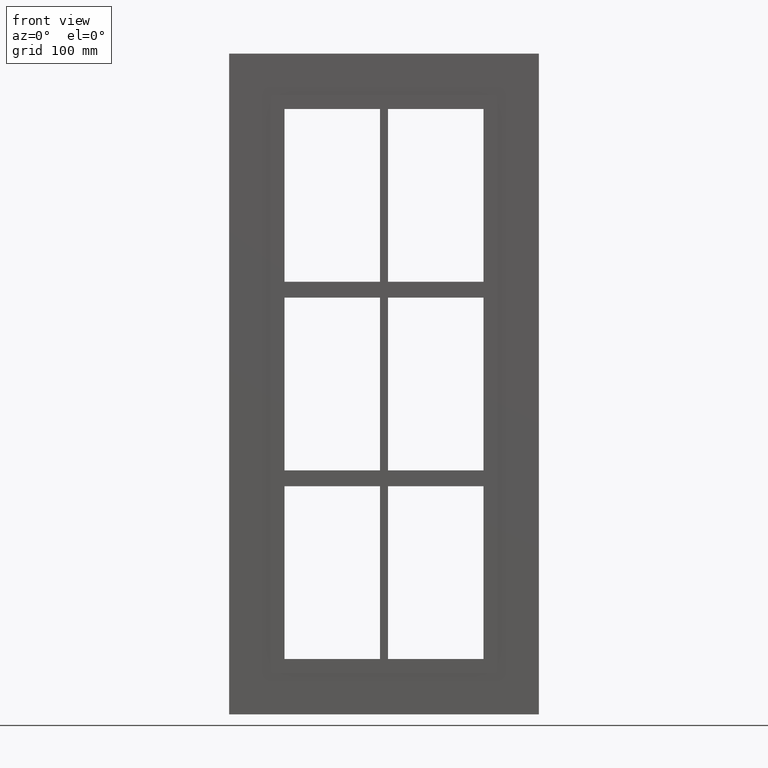
[diagram: clean part render]
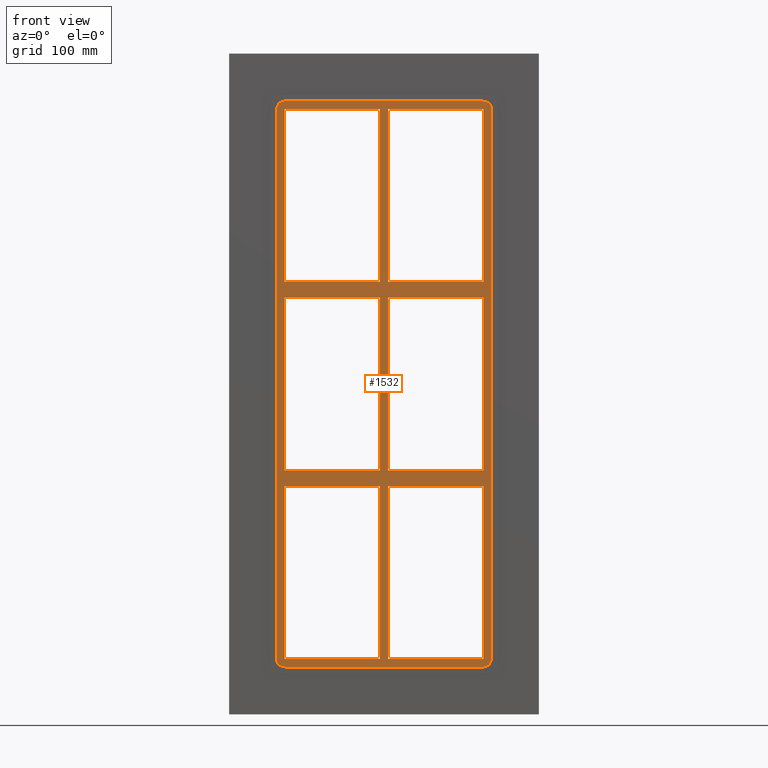
[diagram: same view with one face highlighted and labeled with its STEP entity id]
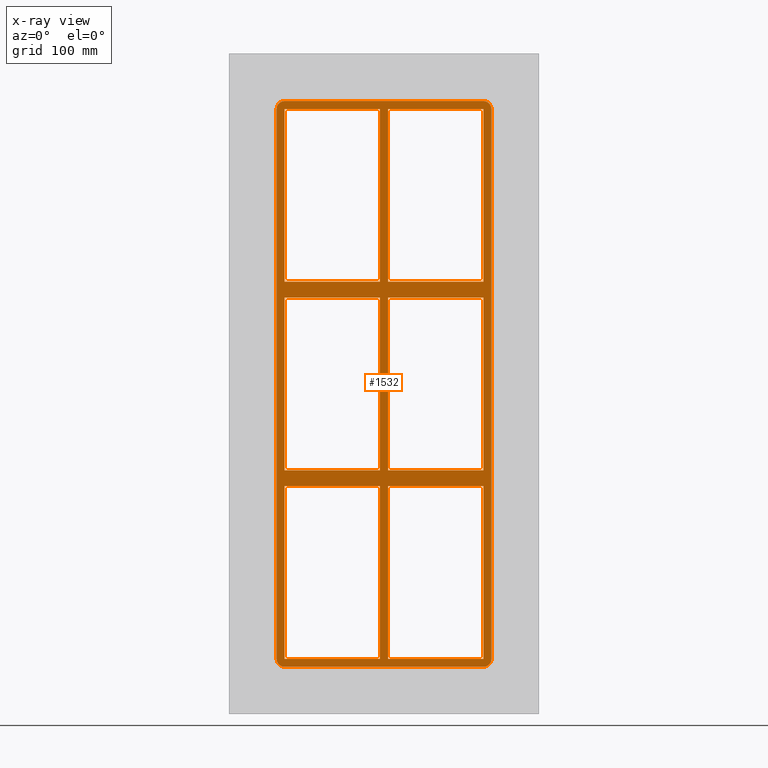
[diagram: x-ray of the same camera — body ghosted, the highlighted face saturated]
A machine part, front view. The second image highlights one B-rep face of the part: STEP entity #1532.
The next image is the same camera in x-ray: the body ghosted, the highlighted face saturated — about 0% of this face is hidden behind the body in this view.
In plain terms, the highlighted planar face has unit normal (0, 1, 0).
Its self-contained STEP definition (entity closure, byte-faithful):
#75=CARTESIAN_POINT('',(5.0,-3.0,108.99999999999062));
#76=VERTEX_POINT('',#75);
#91=CARTESIAN_POINT('',(125.50000000000182,-3.0,108.99999999999068));
#92=VERTEX_POINT('',#91);
#99=CARTESIAN_POINT('',(125.50000000000182,-3.0,108.99999999999068));
#100=DIRECTION('',(-1.0,0.0,0.0));
#101=VECTOR('',#100,120.50000000000182);
#102=LINE('',#99,#101);
#103=EDGE_CURVE('',#92,#76,#102,.T.);
#113=CARTESIAN_POINT('',(5.0,-3.0,128.99999999999994));
#114=VERTEX_POINT('',#113);
#123=CARTESIAN_POINT('',(125.4999999999999,-3.0,128.99999999999994));
#124=VERTEX_POINT('',#123);
#125=CARTESIAN_POINT('',(5.000000000000014,-3.0,128.99999999999994));
#126=DIRECTION('',(1.0,0.0,0.0));
#127=VECTOR('',#126,120.49999999999989);
#128=LINE('',#125,#127);
#129=EDGE_CURVE('',#114,#124,#128,.T.);
#155=CARTESIAN_POINT('',(-5.000000000001368,-3.0,128.99999999999994));
#156=VERTEX_POINT('',#155);
#171=CARTESIAN_POINT('',(-125.4999999999997,-3.0,128.99999999999994));
#172=VERTEX_POINT('',#171);
#179=CARTESIAN_POINT('',(-125.4999999999997,-3.0,128.99999999999994));
#180=DIRECTION('',(1.0,0.0,0.0));
#181=VECTOR('',#180,120.49999999999834);
#182=LINE('',#179,#181);
#183=EDGE_CURVE('',#172,#156,#182,.T.);
#193=CARTESIAN_POINT('',(-5.000000000001368,-3.0,108.99999999999062));
#194=VERTEX_POINT('',#193);
#203=CARTESIAN_POINT('',(-125.4999999999997,-3.0,108.99999999999056));
#204=VERTEX_POINT('',#203);
#205=CARTESIAN_POINT('',(-5.000000000001364,-3.0,108.99999999999062));
#206=DIRECTION('',(-1.0,0.0,0.0));
#207=VECTOR('',#206,120.49999999999832);
#208=LINE('',#205,#207);
#209=EDGE_CURVE('',#194,#204,#208,.T.);
#234=CARTESIAN_POINT('',(-125.4999999999997,-3.0,-109.00000000000006));
#235=VERTEX_POINT('',#234);
#236=CARTESIAN_POINT('',(-125.5,-3.0,-109.00000000000006));
#237=DIRECTION('',(0.0,0.0,1.0));
#238=VECTOR('',#237,217.99999999999065);
#239=LINE('',#236,#238);
#240=EDGE_CURVE('',#235,#204,#239,.T.);
#273=CARTESIAN_POINT('',(125.4999999999999,-3.0,-109.00000000000006));
#274=VERTEX_POINT('',#273);
#281=CARTESIAN_POINT('',(125.49999999999999,-3.0,108.99999999999066));
#282=DIRECTION('',(0.0,0.0,-1.0));
#283=VECTOR('',#282,217.99999999999073);
#284=LINE('',#281,#283);
#285=EDGE_CURVE('',#92,#274,#284,.T.);
#296=CARTESIAN_POINT('',(125.49999999999999,-3.0,347.00000000000011));
#297=VERTEX_POINT('',#296);
#298=CARTESIAN_POINT('',(125.49999999999999,-3.0,347.00000000000011));
#299=DIRECTION('',(0.0,0.0,-1.0));
#300=VECTOR('',#299,218.00000000000017);
#301=LINE('',#298,#300);
#302=EDGE_CURVE('',#297,#124,#301,.T.);
#327=CARTESIAN_POINT('',(-5.000000000001403,-3.0,347.00000000000011));
#328=VERTEX_POINT('',#327);
#329=CARTESIAN_POINT('',(-5.000000000001364,-3.0,129.0));
#330=DIRECTION('',(0.0,0.0,1.0));
#331=VECTOR('',#330,218.00000000000006);
#332=LINE('',#329,#331);
#333=EDGE_CURVE('',#156,#328,#332,.T.);
#366=CARTESIAN_POINT('',(-5.000000000001315,-3.0,-109.00000000000006));
#367=VERTEX_POINT('',#366);
#374=CARTESIAN_POINT('',(-5.000000000001322,-3.0,-109.00000000000006));
#375=DIRECTION('',(0.0,0.0,1.0));
#376=VECTOR('',#375,217.99999999999068);
#377=LINE('',#374,#376);
#378=EDGE_CURVE('',#367,#194,#377,.T.);
#397=CARTESIAN_POINT('',(5.0,-3.0,347.00000000000011));
#398=VERTEX_POINT('',#397);
#405=CARTESIAN_POINT('',(5.0,-3.0,347.00000000000011));
#406=DIRECTION('',(0.0,0.0,-1.0));
#407=VECTOR('',#406,218.00000000000014);
#408=LINE('',#405,#407);
#409=EDGE_CURVE('',#398,#114,#408,.T.);
#421=CARTESIAN_POINT('',(5.0,-3.0,-129.00000000000938));
#422=VERTEX_POINT('',#421);
#437=CARTESIAN_POINT('',(125.50000000000182,-3.0,-129.00000000000932));
#438=VERTEX_POINT('',#437);
#445=CARTESIAN_POINT('',(125.50000000000182,-3.0,-129.00000000000932));
#446=DIRECTION('',(-1.0,0.0,0.0));
#447=VECTOR('',#446,120.50000000000182);
#448=LINE('',#445,#447);
#449=EDGE_CURVE('',#438,#422,#448,.T.);
#459=CARTESIAN_POINT('',(-5.000000000001315,-3.0,-129.00000000000938));
#460=VERTEX_POINT('',#459);
#469=CARTESIAN_POINT('',(-125.4999999999997,-3.0,-129.00000000000944));
#470=VERTEX_POINT('',#469);
#471=CARTESIAN_POINT('',(-5.000000000001307,-3.0,-129.00000000000938));
#472=DIRECTION('',(-1.0,0.0,0.0));
#473=VECTOR('',#472,120.49999999999838);
#474=LINE('',#471,#473);
#475=EDGE_CURVE('',#460,#470,#474,.T.);
#499=CARTESIAN_POINT('',(5.0,-3.0,-109.00000000000006));
#500=VERTEX_POINT('',#499);
#509=CARTESIAN_POINT('',(5.000000000000014,-3.0,-109.00000000000006));
#510=DIRECTION('',(1.0,0.0,0.0));
#511=VECTOR('',#510,120.49999999999989);
#512=LINE('',#509,#511);
#513=EDGE_CURVE('',#500,#274,#512,.T.);
#538=CARTESIAN_POINT('',(-125.4999999999997,-3.0,-109.00000000000006));
#539=DIRECTION('',(1.0,0.0,0.0));
#540=VECTOR('',#539,120.49999999999839);
#541=LINE('',#538,#540);
#542=EDGE_CURVE('',#235,#367,#541,.T.);
#561=CARTESIAN_POINT('',(-125.50000000000003,-3.0,347.00000000000011));
#562=VERTEX_POINT('',#561);
#569=CARTESIAN_POINT('',(-125.5,-3.0,128.99999999999997));
#570=DIRECTION('',(0.0,0.0,1.0));
#571=VECTOR('',#570,218.00000000000014);
#572=LINE('',#569,#571);
#573=EDGE_CURVE('',#172,#562,#572,.T.);
#592=CARTESIAN_POINT('',(125.49999999999999,-3.0,-346.99999999999994));
#593=VERTEX_POINT('',#592);
#600=CARTESIAN_POINT('',(125.49999999999999,-3.0,-129.00000000000932));
#601=DIRECTION('',(0.0,0.0,-1.0));
#602=VECTOR('',#601,217.99999999999068);
#603=LINE('',#600,#602);
#604=EDGE_CURVE('',#438,#593,#603,.T.);
#773=CARTESIAN_POINT('',(5.0,-3.0,108.99999999999062));
#774=DIRECTION('',(0.0,0.0,-1.0));
#775=VECTOR('',#774,217.99999999999068);
#776=LINE('',#773,#775);
#777=EDGE_CURVE('',#76,#500,#776,.T.);
#791=CARTESIAN_POINT('',(-5.000000000001279,-3.0,-346.99999999999994));
#792=VERTEX_POINT('',#791);
#799=CARTESIAN_POINT('',(-5.000000000001279,-3.0,-346.99999999999994));
#800=DIRECTION('',(0.0,0.0,1.0));
#801=VECTOR('',#800,217.99999999999059);
#802=LINE('',#799,#801);
#803=EDGE_CURVE('',#792,#460,#802,.T.);
#814=CARTESIAN_POINT('',(5.0,-3.0,-346.99999999998397));
#815=VERTEX_POINT('',#814);
#816=CARTESIAN_POINT('',(5.0,-3.0,-129.00000000000932));
#817=DIRECTION('',(0.0,0.0,-1.0));
#818=VECTOR('',#817,217.99999999997465);
#819=LINE('',#816,#818);
#820=EDGE_CURVE('',#422,#815,#819,.T.);
#839=CARTESIAN_POINT('',(-125.50000000000003,-3.0,-346.99999999999994));
#840=VERTEX_POINT('',#839);
#847=CARTESIAN_POINT('',(-5.000000000001286,-3.0,-346.99999999999994));
#848=DIRECTION('',(-1.0,0.0,0.0));
#849=VECTOR('',#848,120.49999999999875);
#850=LINE('',#847,#849);
#851=EDGE_CURVE('',#792,#840,#850,.T.);
#862=CARTESIAN_POINT('',(125.49999999999999,-3.0,-346.99999999999994));
#863=DIRECTION('',(-1.0,0.0,0.0));
#864=VECTOR('',#863,120.49999999999999);
#865=LINE('',#862,#864);
#866=EDGE_CURVE('',#593,#815,#865,.T.);
#881=CARTESIAN_POINT('',(5.0,-3.0,347.0));
#882=DIRECTION('',(1.0,0.0,0.0));
#883=VECTOR('',#882,120.5);
#884=LINE('',#881,#883);
#885=EDGE_CURVE('',#398,#297,#884,.T.);
#896=CARTESIAN_POINT('',(-125.50000000000003,-3.0,347.0));
#897=DIRECTION('',(1.0,0.0,0.0));
#898=VECTOR('',#897,120.49999999999864);
#899=LINE('',#896,#898);
#900=EDGE_CURVE('',#562,#328,#899,.T.);
#1201=CARTESIAN_POINT('',(-125.5,-3.0,-346.99999999999994));
#1202=DIRECTION('',(0.0,0.0,1.0));
#1203=VECTOR('',#1202,217.99999999999051);
#1204=LINE('',#1201,#1203);
#1205=EDGE_CURVE('',#840,#470,#1204,.T.);
#1218=CARTESIAN_POINT('',(125.5,-3.0,357.0));
#1219=VERTEX_POINT('',#1218);
#1226=CARTESIAN_POINT('',(135.5,-3.0,347.0));
#1227=VERTEX_POINT('',#1226);
#1228=CARTESIAN_POINT('',(125.5,-3.0,347.0));
#1229=DIRECTION('',(0.0,1.0,0.0));
#1230=DIRECTION('',(0.707106781186547,0.0,0.707106781186547));
#1231=AXIS2_PLACEMENT_3D('',#1228,#1229,#1230);
#1232=CIRCLE('',#1231,9.999999999999998);
#1233=EDGE_CURVE('',#1219,#1227,#1232,.T.);
#1273=CARTESIAN_POINT('',(135.5,-3.0,-347.0));
#1274=VERTEX_POINT('',#1273);
#1275=CARTESIAN_POINT('',(135.5,-3.0,-347.0));
#1276=DIRECTION('',(0.0,0.0,1.0));
#1277=VECTOR('',#1276,694.0);
#1278=LINE('',#1275,#1277);
#1279=EDGE_CURVE('',#1274,#1227,#1278,.T.);
#1313=CARTESIAN_POINT('',(-125.5,-3.0,357.0));
#1314=VERTEX_POINT('',#1313);
#1321=CARTESIAN_POINT('',(125.5,-3.0,357.0));
#1322=DIRECTION('',(-1.0,0.0,0.0));
#1323=VECTOR('',#1322,251.0);
#1324=LINE('',#1321,#1323);
#1325=EDGE_CURVE('',#1219,#1314,#1324,.T.);
#1338=CARTESIAN_POINT('',(125.5,-3.0,-357.0));
#1339=VERTEX_POINT('',#1338);
#1340=CARTESIAN_POINT('',(125.5,-3.0,-347.0));
#1341=DIRECTION('',(0.0,1.0,0.0));
#1342=DIRECTION('',(0.707106781186547,0.0,-0.707106781186547));
#1343=AXIS2_PLACEMENT_3D('',#1340,#1341,#1342);
#1344=CIRCLE('',#1343,9.999999999999998);
#1345=EDGE_CURVE('',#1274,#1339,#1344,.T.);
#1379=CARTESIAN_POINT('',(-135.5,-3.0,347.0));
#1380=VERTEX_POINT('',#1379);
#1387=CARTESIAN_POINT('',(-125.5,-3.0,347.0));
#1388=DIRECTION('',(0.0,1.0,0.0));
#1389=DIRECTION('',(-0.707106781186547,0.0,0.707106781186547));
#1390=AXIS2_PLACEMENT_3D('',#1387,#1388,#1389);
#1391=CIRCLE('',#1390,9.999999999999998);
#1392=EDGE_CURVE('',#1380,#1314,#1391,.T.);
#1405=CARTESIAN_POINT('',(-125.5,-3.0,-357.0));
#1406=VERTEX_POINT('',#1405);
#1407=CARTESIAN_POINT('',(-125.5,-3.0,-357.0));
#1408=DIRECTION('',(1.0,0.0,0.0));
#1409=VECTOR('',#1408,251.0);
#1410=LINE('',#1407,#1409);
#1411=EDGE_CURVE('',#1406,#1339,#1410,.T.);
#1445=CARTESIAN_POINT('',(-135.5,-3.0,-347.0));
#1446=VERTEX_POINT('',#1445);
#1453=CARTESIAN_POINT('',(-135.5,-3.0,347.0));
#1454=DIRECTION('',(0.0,0.0,-1.0));
#1455=VECTOR('',#1454,694.0);
#1456=LINE('',#1453,#1455);
#1457=EDGE_CURVE('',#1380,#1446,#1456,.T.);
#1470=CARTESIAN_POINT('',(-125.5,-3.0,-347.0));
#1471=DIRECTION('',(0.0,1.0,0.0));
#1472=DIRECTION('',(-0.707106781186547,0.0,-0.707106781186547));
#1473=AXIS2_PLACEMENT_3D('',#1470,#1471,#1472);
#1474=CIRCLE('',#1473,9.999999999999998);
#1475=EDGE_CURVE('',#1406,#1446,#1474,.T.);
#1481=CARTESIAN_POINT('',(0.0,-3.0,0.0));
#1482=DIRECTION('',(0.0,1.0,0.0));
#1483=DIRECTION('',(0.0,0.0,1.0));
#1484=AXIS2_PLACEMENT_3D('',#1481,#1482,#1483);
#1485=PLANE('',#1484);
#1486=ORIENTED_EDGE('',*,*,#1345,.F.);
#1487=ORIENTED_EDGE('',*,*,#1279,.T.);
#1488=ORIENTED_EDGE('',*,*,#1233,.F.);
#1489=ORIENTED_EDGE('',*,*,#1325,.T.);
#1490=ORIENTED_EDGE('',*,*,#1392,.F.);
#1491=ORIENTED_EDGE('',*,*,#1457,.T.);
#1492=ORIENTED_EDGE('',*,*,#1475,.F.);
#1493=ORIENTED_EDGE('',*,*,#1411,.T.);
#1494=EDGE_LOOP('',(#1486,#1487,#1488,#1489,#1490,#1491,#1492,#1493));
#1495=FACE_OUTER_BOUND('',#1494,.T.);
#1496=ORIENTED_EDGE('',*,*,#573,.T.);
#1497=ORIENTED_EDGE('',*,*,#900,.T.);
#1498=ORIENTED_EDGE('',*,*,#333,.F.);
#1499=ORIENTED_EDGE('',*,*,#183,.F.);
#1500=EDGE_LOOP('',(#1496,#1497,#1498,#1499));
#1501=FACE_BOUND('',#1500,.T.);
#1502=ORIENTED_EDGE('',*,*,#285,.T.);
#1503=ORIENTED_EDGE('',*,*,#513,.F.);
#1504=ORIENTED_EDGE('',*,*,#777,.F.);
#1505=ORIENTED_EDGE('',*,*,#103,.F.);
#1506=EDGE_LOOP('',(#1502,#1503,#1504,#1505));
#1507=FACE_BOUND('',#1506,.T.);
#1508=ORIENTED_EDGE('',*,*,#209,.F.);
#1509=ORIENTED_EDGE('',*,*,#378,.F.);
#1510=ORIENTED_EDGE('',*,*,#542,.F.);
#1511=ORIENTED_EDGE('',*,*,#240,.T.);
#1512=EDGE_LOOP('',(#1508,#1509,#1510,#1511));
#1513=FACE_BOUND('',#1512,.T.);
#1514=ORIENTED_EDGE('',*,*,#129,.F.);
#1515=ORIENTED_EDGE('',*,*,#409,.F.);
#1516=ORIENTED_EDGE('',*,*,#885,.T.);
#1517=ORIENTED_EDGE('',*,*,#302,.T.);
#1518=EDGE_LOOP('',(#1514,#1515,#1516,#1517));
#1519=FACE_BOUND('',#1518,.T.);
#1520=ORIENTED_EDGE('',*,*,#604,.T.);
#1521=ORIENTED_EDGE('',*,*,#866,.T.);
#1522=ORIENTED_EDGE('',*,*,#820,.F.);
#1523=ORIENTED_EDGE('',*,*,#449,.F.);
#1524=EDGE_LOOP('',(#1520,#1521,#1522,#1523));
#1525=FACE_BOUND('',#1524,.T.);
#1526=ORIENTED_EDGE('',*,*,#475,.F.);
#1527=ORIENTED_EDGE('',*,*,#803,.F.);
#1528=ORIENTED_EDGE('',*,*,#851,.T.);
#1529=ORIENTED_EDGE('',*,*,#1205,.T.);
#1530=EDGE_LOOP('',(#1526,#1527,#1528,#1529));
#1531=FACE_BOUND('',#1530,.T.);
#1532=ADVANCED_FACE('',(#1495,#1501,#1507,#1513,#1519,#1525,#1531),#1485,.F.);